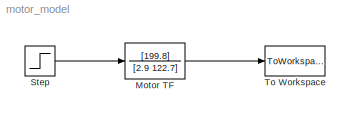
MODEL motor_model
KIND model
BLOCK [TransferFcn] Motor TF
  Denominator = [2.9 122.7]
  Numerator = [199.8]
BLOCK [Step] Step
  After = 4.18
  Before = 3
  SampleTime = 0
  Time = 2
BLOCK [ToWorkspace] To Workspace
  MaxDataPoints = inf
  SampleTime = -1
  SaveFormat = Array
  VariableName = omega
LINE Motor TF:1 -> To Workspace:1
LINE Step:1 -> Motor TF:1
